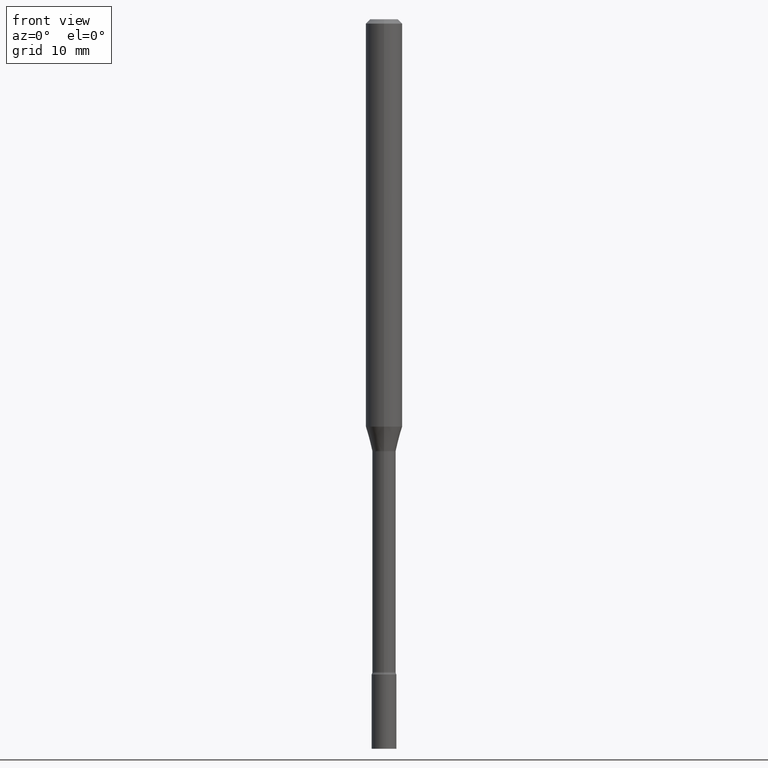
[diagram: clean part render]
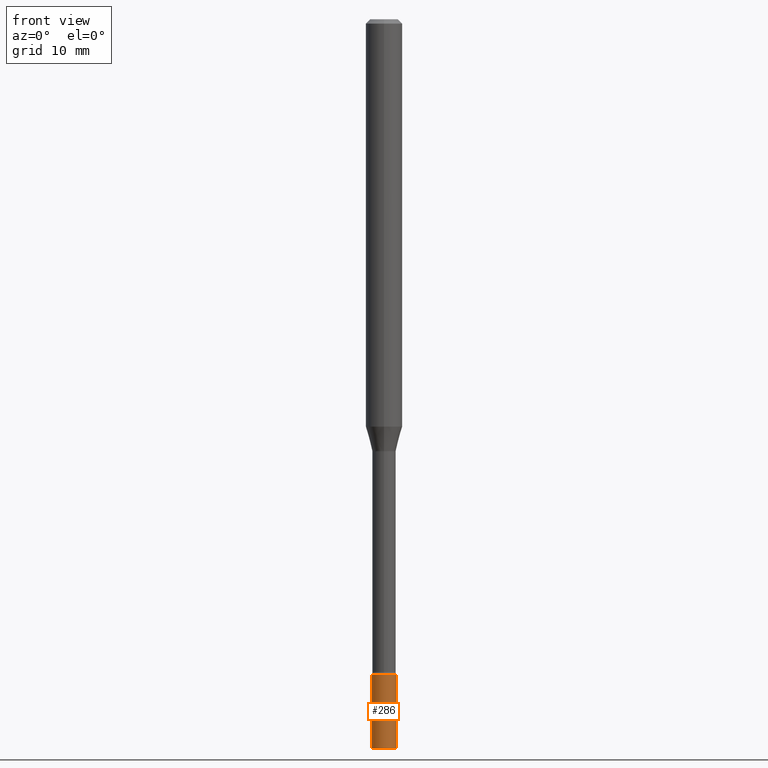
[diagram: same view with one face highlighted and labeled with its STEP entity id]
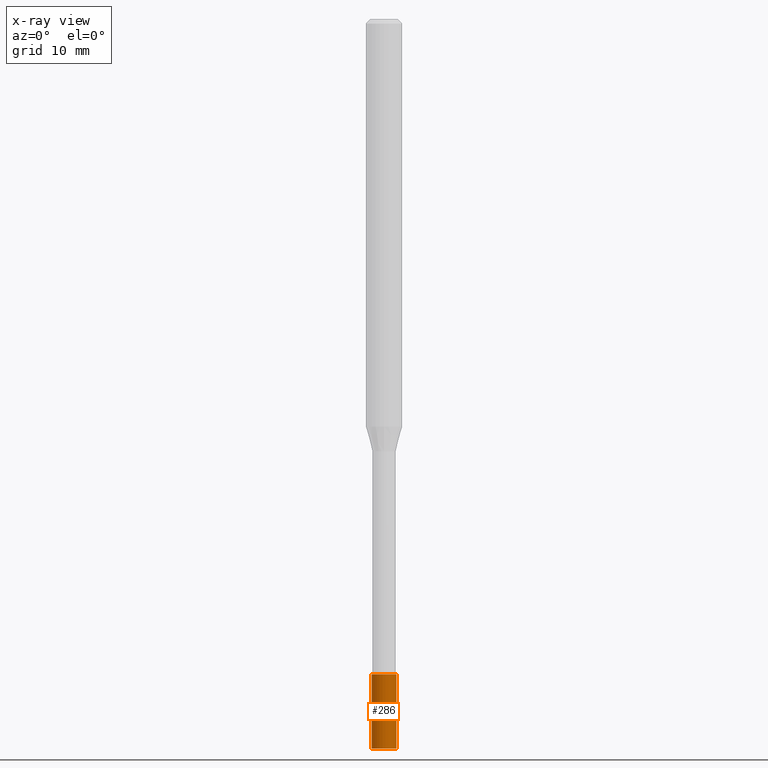
[diagram: x-ray of the same camera — body ghosted, the highlighted face saturated]
A machine part, front view. The second image highlights one B-rep face of the part: STEP entity #286.
The next image is the same camera in x-ray: the body ghosted, the highlighted face saturated — about 0% of this face is hidden behind the body in this view.
In plain terms, the highlighted cylindrical surface (edge-blend (fillet) strip) has radius 1.0795 mm, axis along (-0, 0, 1).
Its self-contained STEP definition (entity closure, byte-faithful):
#40 = EDGE_CURVE ( 'NONE', #243, #147, #200, .T. ) ;
#42 = CARTESIAN_POINT ( 'NONE',  ( 0.04249999999999999611, -9.025479260909530016E-15, -2.500000000000000000 ) ) ;
#78 = LINE ( 'NONE', #160, #207 ) ;
#87 = EDGE_LOOP ( 'NONE', ( #364, #139, #93, #405 ) ) ;
#93 = ORIENTED_EDGE ( 'NONE', *, *, #155, .T. ) ;
#102 = FACE_OUTER_BOUND ( 'NONE', #87, .T. ) ;
#112 = DIRECTION ( 'NONE',  ( -2.445468806185136877E-29, 3.491481338843145188E-15, 1.000000000000000000 ) ) ;
#119 = VERTEX_POINT ( 'NONE', #260 ) ;
#139 = ORIENTED_EDGE ( 'NONE', *, *, #40, .T. ) ;
#143 = CARTESIAN_POINT ( 'NONE',  ( 0.000000000000000000, 0.000000000000000000, 0.000000000000000000 ) ) ;
#147 = VERTEX_POINT ( 'NONE', #42 ) ;
#148 = EDGE_CURVE ( 'NONE', #319, #119, #303, .T. ) ;
#149 = CARTESIAN_POINT ( 'NONE',  ( -0.04249999999999999611, 3.019806626980425514E-16, -2.090547413358334859E-30 ) ) ;
#155 = EDGE_CURVE ( 'NONE', #147, #119, #78, .T. ) ;
#160 = CARTESIAN_POINT ( 'NONE',  ( 0.04249999999999999611, -2.967759138016663549E-16, 2.072375129713272502E-30 ) ) ;
#200 = CIRCLE ( 'NONE', #366, 0.04249999999999999611 ) ;
#207 = VECTOR ( 'NONE', #236, 39.37007874015748143 ) ;
#225 = CYLINDRICAL_SURFACE ( 'NONE', #489, 0.04249999999999999611 ) ;
#236 = DIRECTION ( 'NONE',  ( -2.445468806185136877E-29, 3.491481338843145188E-15, 1.000000000000000000 ) ) ;
#243 = VERTEX_POINT ( 'NONE', #309 ) ;
#260 = CARTESIAN_POINT ( 'NONE',  ( 0.04249999999999999611, -8.135151519504528486E-15, -2.245000000000000107 ) ) ;
#262 = EDGE_CURVE ( 'NONE', #243, #319, #415, .T. ) ;
#278 = AXIS2_PLACEMENT_3D ( 'NONE', #518, #515, #434 ) ;
#286 = ADVANCED_FACE ( 'NONE', ( #102 ), #225, .T. ) ;
#297 = CARTESIAN_POINT ( 'NONE',  ( 6.113672015462842613E-29, -8.728703347107864943E-15, -2.500000000000000000 ) ) ;
#299 = CARTESIAN_POINT ( 'NONE',  ( -0.04249999999999999611, -7.981558813707320936E-15, -2.245000000000000107 ) ) ;
#303 = CIRCLE ( 'NONE', #278, 0.04249999999999999611 ) ;
#308 = DIRECTION ( 'NONE',  ( 1.000000000000000000, -6.982962677686254089E-15, 0.000000000000000000 ) ) ;
#309 = CARTESIAN_POINT ( 'NONE',  ( -0.04249999999999999611, -7.981558813707320936E-15, -2.500000000000000000 ) ) ;
#319 = VERTEX_POINT ( 'NONE', #299 ) ;
#335 = DIRECTION ( 'NONE',  ( 1.000000000000000000, -6.982962677686267499E-15, 4.876176775795935793E-29 ) ) ;
#364 = ORIENTED_EDGE ( 'NONE', *, *, #262, .F. ) ;
#366 = AXIS2_PLACEMENT_3D ( 'NONE', #297, #381, #308 ) ;
#374 = VECTOR ( 'NONE', #112, 39.37007874015748143 ) ;
#381 = DIRECTION ( 'NONE',  ( -2.445468806185136597E-29, 3.491481338843145583E-15, 1.000000000000000000 ) ) ;
#405 = ORIENTED_EDGE ( 'NONE', *, *, #148, .F. ) ;
#415 = LINE ( 'NONE', #149, #374 ) ;
#434 = DIRECTION ( 'NONE',  ( 1.000000000000000000, -6.982962677686276177E-15, 0.000000000000000000 ) ) ;
#489 = AXIS2_PLACEMENT_3D ( 'NONE', #143, #498, #335 ) ;
#498 = DIRECTION ( 'NONE',  ( -2.445468806185136597E-29, 3.491481338843145583E-15, 1.000000000000000000 ) ) ;
#515 = DIRECTION ( 'NONE',  ( -2.445468806185136597E-29, 3.491481338843145583E-15, 1.000000000000000000 ) ) ;
#518 = CARTESIAN_POINT ( 'NONE',  ( 5.490077469885631570E-29, -7.838375605702861835E-15, -2.245000000000000107 ) ) ;